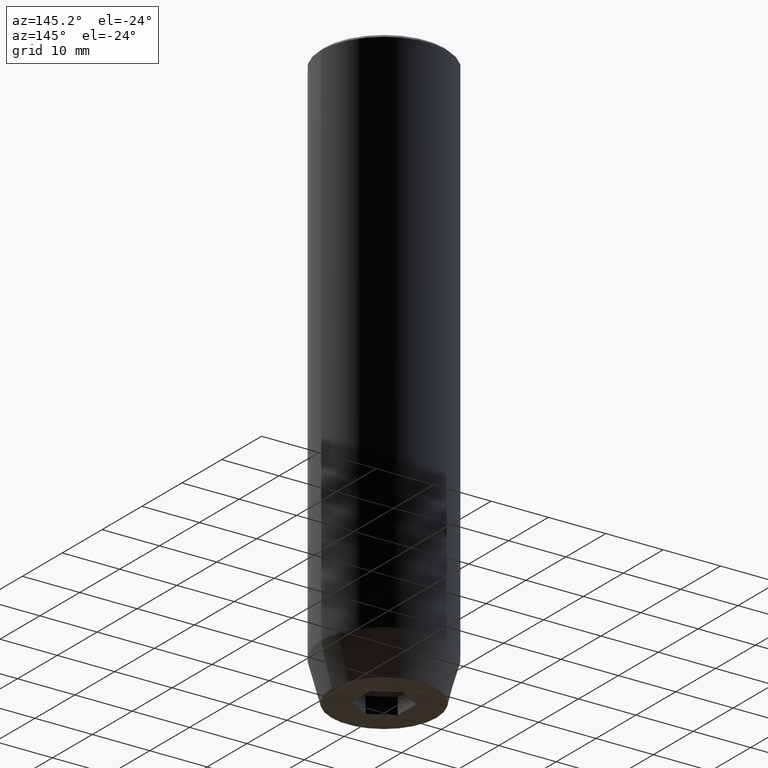
[diagram: clean part render]
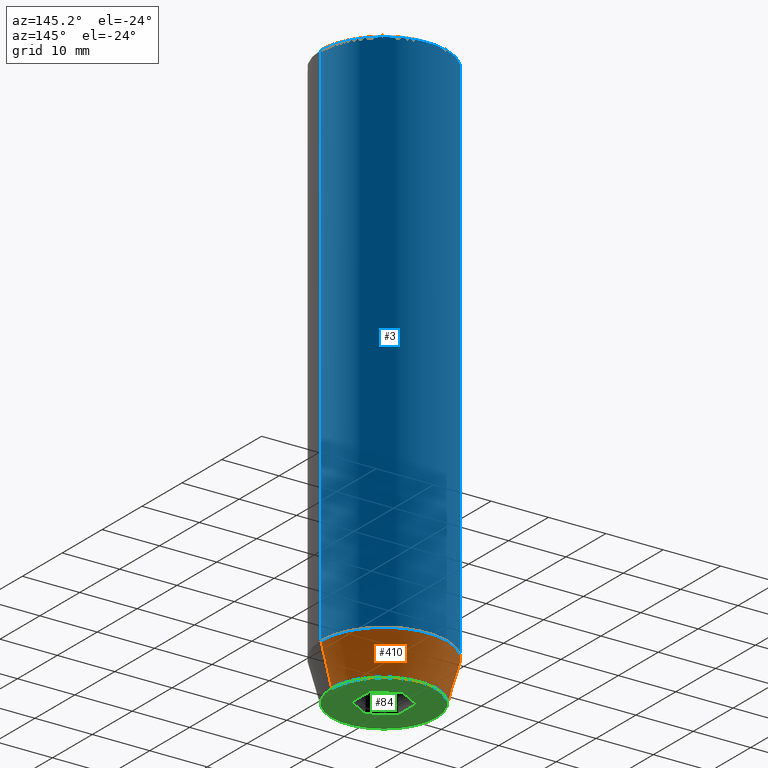
[diagram: same view with three faces highlighted in distinct colors, each labeled with its STEP entity id]
A machine part, auxiliary view with three faces highlighted in distinct colors.
Their STEP definitions:

[orange] entity #410 — the highlighted conical surface has half-angle 15 deg.
#31 = ORIENTED_EDGE ( 'NONE', *, *, #440, .F. ) ;
#40 = DIRECTION ( 'NONE',  ( -0.000000000000000000, -0.000000000000000000, 1.000000000000000000 ) ) ;
#44 = CARTESIAN_POINT ( 'NONE',  ( -9.124355652982133691, 1.232261386766375507E-15, -100.0000000000000000 ) ) ;
#70 = VECTOR ( 'NONE', #381, 1000.000000000000000 ) ;
#85 = AXIS2_PLACEMENT_3D ( 'NONE', #281, #450, #190 ) ;
#88 = CARTESIAN_POINT ( 'NONE',  ( 0.000000000000000000, 0.000000000000000000, -100.0000000000000000 ) ) ;
#102 = DIRECTION ( 'NONE',  ( 0.2588190451025213501, 0.000000000000000000, 0.9659258262890680902 ) ) ;
#106 = VERTEX_POINT ( 'NONE', #366 ) ;
#120 = ORIENTED_EDGE ( 'NONE', *, *, #435, .T. ) ;
#132 = EDGE_CURVE ( 'NONE', #201, #167, #495, .T. ) ;
#144 = DIRECTION ( 'NONE',  ( 1.000000000000000000, 0.000000000000000000, 0.000000000000000000 ) ) ;
#167 = VERTEX_POINT ( 'NONE', #44 ) ;
#190 = DIRECTION ( 'NONE',  ( 1.000000000000000000, 0.000000000000000000, 0.000000000000000000 ) ) ;
#201 = VERTEX_POINT ( 'NONE', #447 ) ;
#242 = LINE ( 'NONE', #417, #70 ) ;
#276 = CIRCLE ( 'NONE', #371, 11.00000000000000000 ) ;
#281 = CARTESIAN_POINT ( 'NONE',  ( 0.000000000000000000, 0.000000000000000000, -93.00000000000000000 ) ) ;
#292 = CARTESIAN_POINT ( 'NONE',  ( 11.00000000000000000, 0.000000000000000000, -93.00000000000000000 ) ) ;
#305 = ORIENTED_EDGE ( 'NONE', *, *, #525, .F. ) ;
#317 = CONICAL_SURFACE ( 'NONE', #85, 11.00000000000000000, 0.2617993877991500740 ) ;
#347 = CARTESIAN_POINT ( 'NONE',  ( 0.000000000000000000, 0.000000000000000000, -93.00000000000000000 ) ) ;
#353 = ORIENTED_EDGE ( 'NONE', *, *, #132, .T. ) ;
#366 = CARTESIAN_POINT ( 'NONE',  ( 11.00000000000000000, 0.000000000000000000, -93.00000000000000000 ) ) ;
#371 = AXIS2_PLACEMENT_3D ( 'NONE', #347, #395, #513 ) ;
#381 = DIRECTION ( 'NONE',  ( -0.2588190451025213501, 3.169619151431772337E-17, 0.9659258262890680902 ) ) ;
#395 = DIRECTION ( 'NONE',  ( -0.000000000000000000, -0.000000000000000000, 1.000000000000000000 ) ) ;
#410 = ADVANCED_FACE ( 'NONE', ( #457 ), #317, .T. ) ;
#417 = CARTESIAN_POINT ( 'NONE',  ( -11.00000000000000000, 1.347111479062088405E-15, -93.00000000000000000 ) ) ;
#429 = VERTEX_POINT ( 'NONE', #503 ) ;
#435 = EDGE_CURVE ( 'NONE', #167, #429, #242, .T. ) ;
#440 = EDGE_CURVE ( 'NONE', #201, #106, #545, .T. ) ;
#447 = CARTESIAN_POINT ( 'NONE',  ( 9.124355652982133691, 0.000000000000000000, -100.0000000000000000 ) ) ;
#450 = DIRECTION ( 'NONE',  ( -0.000000000000000000, -0.000000000000000000, 1.000000000000000000 ) ) ;
#457 = FACE_OUTER_BOUND ( 'NONE', #501, .T. ) ;
#474 = VECTOR ( 'NONE', #102, 1000.000000000000000 ) ;
#495 = CIRCLE ( 'NONE', #572, 9.124355652982133691 ) ;
#501 = EDGE_LOOP ( 'NONE', ( #353, #120, #305, #31 ) ) ;
#503 = CARTESIAN_POINT ( 'NONE',  ( -11.00000000000000000, 1.347111479062088405E-15, -93.00000000000000000 ) ) ;
#513 = DIRECTION ( 'NONE',  ( 1.000000000000000000, 0.000000000000000000, 0.000000000000000000 ) ) ;
#525 = EDGE_CURVE ( 'NONE', #106, #429, #276, .T. ) ;
#545 = LINE ( 'NONE', #292, #474 ) ;
#572 = AXIS2_PLACEMENT_3D ( 'NONE', #88, #40, #144 ) ;

[blue] entity #3 — the highlighted cylindrical surface (partial cylindrical patch) has radius 11 mm, axis along (-0, -0, 1).
#3 = ADVANCED_FACE ( 'NONE', ( #77 ), #571, .T. ) ;
#17 = CARTESIAN_POINT ( 'NONE',  ( -11.00000000000000000, 1.347111479062088405E-15, -0.5000000000000004441 ) ) ;
#30 = DIRECTION ( 'NONE',  ( -0.000000000000000000, -0.000000000000000000, 1.000000000000000000 ) ) ;
#49 = EDGE_CURVE ( 'NONE', #429, #470, #482, .T. ) ;
#77 = FACE_OUTER_BOUND ( 'NONE', #400, .T. ) ;
#106 = VERTEX_POINT ( 'NONE', #366 ) ;
#161 = CARTESIAN_POINT ( 'NONE',  ( 11.00000000000000000, 0.000000000000000000, -0.5000000000000004441 ) ) ;
#163 = LINE ( 'NONE', #345, #508 ) ;
#164 = ORIENTED_EDGE ( 'NONE', *, *, #234, .F. ) ;
#195 = CARTESIAN_POINT ( 'NONE',  ( 0.000000000000000000, 0.000000000000000000, -0.5000000000000004441 ) ) ;
#224 = DIRECTION ( 'NONE',  ( -0.000000000000000000, -0.000000000000000000, 1.000000000000000000 ) ) ;
#229 = DIRECTION ( 'NONE',  ( -0.000000000000000000, -0.000000000000000000, 1.000000000000000000 ) ) ;
#234 = EDGE_CURVE ( 'NONE', #106, #510, #163, .T. ) ;
#236 = DIRECTION ( 'NONE',  ( 0.000000000000000000, 0.000000000000000000, -1.000000000000000000 ) ) ;
#276 = CIRCLE ( 'NONE', #371, 11.00000000000000000 ) ;
#298 = ORIENTED_EDGE ( 'NONE', *, *, #49, .T. ) ;
#310 = AXIS2_PLACEMENT_3D ( 'NONE', #478, #229, #365 ) ;
#330 = AXIS2_PLACEMENT_3D ( 'NONE', #195, #236, #372 ) ;
#343 = ORIENTED_EDGE ( 'NONE', *, *, #525, .T. ) ;
#345 = CARTESIAN_POINT ( 'NONE',  ( 11.00000000000000000, 0.000000000000000000, 0.000000000000000000 ) ) ;
#347 = CARTESIAN_POINT ( 'NONE',  ( 0.000000000000000000, 0.000000000000000000, -93.00000000000000000 ) ) ;
#365 = DIRECTION ( 'NONE',  ( 1.000000000000000000, 0.000000000000000000, 0.000000000000000000 ) ) ;
#366 = CARTESIAN_POINT ( 'NONE',  ( 11.00000000000000000, 0.000000000000000000, -93.00000000000000000 ) ) ;
#371 = AXIS2_PLACEMENT_3D ( 'NONE', #347, #395, #513 ) ;
#372 = DIRECTION ( 'NONE',  ( 1.000000000000000000, 0.000000000000000000, 0.000000000000000000 ) ) ;
#395 = DIRECTION ( 'NONE',  ( -0.000000000000000000, -0.000000000000000000, 1.000000000000000000 ) ) ;
#400 = EDGE_LOOP ( 'NONE', ( #343, #298, #473, #164 ) ) ;
#402 = CIRCLE ( 'NONE', #330, 11.00000000000000000 ) ;
#428 = EDGE_CURVE ( 'NONE', #470, #510, #402, .T. ) ;
#429 = VERTEX_POINT ( 'NONE', #503 ) ;
#470 = VERTEX_POINT ( 'NONE', #17 ) ;
#473 = ORIENTED_EDGE ( 'NONE', *, *, #428, .T. ) ;
#478 = CARTESIAN_POINT ( 'NONE',  ( 0.000000000000000000, 0.000000000000000000, 0.000000000000000000 ) ) ;
#482 = LINE ( 'NONE', #562, #484 ) ;
#484 = VECTOR ( 'NONE', #224, 1000.000000000000000 ) ;
#503 = CARTESIAN_POINT ( 'NONE',  ( -11.00000000000000000, 1.347111479062088405E-15, -93.00000000000000000 ) ) ;
#508 = VECTOR ( 'NONE', #30, 1000.000000000000000 ) ;
#510 = VERTEX_POINT ( 'NONE', #161 ) ;
#513 = DIRECTION ( 'NONE',  ( 1.000000000000000000, 0.000000000000000000, 0.000000000000000000 ) ) ;
#525 = EDGE_CURVE ( 'NONE', #106, #429, #276, .T. ) ;
#562 = CARTESIAN_POINT ( 'NONE',  ( -11.00000000000000000, 1.347111479062088405E-15, 0.000000000000000000 ) ) ;
#571 = CYLINDRICAL_SURFACE ( 'NONE', #310, 11.00000000000000000 ) ;

[green] entity #84 — the highlighted planar face has unit normal (0, 0, -1).
#6 = ORIENTED_EDGE ( 'NONE', *, *, #469, .F. ) ;
#14 = ORIENTED_EDGE ( 'NONE', *, *, #90, .F. ) ;
#15 = DIRECTION ( 'NONE',  ( -0.000000000000000000, -0.000000000000000000, 1.000000000000000000 ) ) ;
#18 = EDGE_LOOP ( 'NONE', ( #514, #24, #14, #113, #155, #6 ) ) ;
#19 = LINE ( 'NONE', #116, #548 ) ;
#23 = EDGE_LOOP ( 'NONE', ( #159, #300 ) ) ;
#24 = ORIENTED_EDGE ( 'NONE', *, *, #114, .F. ) ;
#33 = LINE ( 'NONE', #309, #295 ) ;
#40 = DIRECTION ( 'NONE',  ( -0.000000000000000000, -0.000000000000000000, 1.000000000000000000 ) ) ;
#44 = CARTESIAN_POINT ( 'NONE',  ( -9.124355652982133691, 1.232261386766375507E-15, -100.0000000000000000 ) ) ;
#48 = LINE ( 'NONE', #193, #264 ) ;
#67 = CARTESIAN_POINT ( 'NONE',  ( 0.000000000000000000, 0.000000000000000000, -100.0000000000000000 ) ) ;
#82 = LINE ( 'NONE', #287, #189 ) ;
#84 = ADVANCED_FACE ( 'NONE', ( #170, #174 ), #308, .T. ) ;
#88 = CARTESIAN_POINT ( 'NONE',  ( 0.000000000000000000, 0.000000000000000000, -100.0000000000000000 ) ) ;
#90 = EDGE_CURVE ( 'NONE', #214, #215, #33, .T. ) ;
#94 = EDGE_CURVE ( 'NONE', #420, #112, #370, .T. ) ;
#99 = CIRCLE ( 'NONE', #584, 9.124355652982133691 ) ;
#101 = CARTESIAN_POINT ( 'NONE',  ( 4.000000000000000000, -2.309401076758502480, -100.0000000000000000 ) ) ;
#107 = VECTOR ( 'NONE', #134, 1000.000000000000000 ) ;
#112 = VERTEX_POINT ( 'NONE', #101 ) ;
#113 = ORIENTED_EDGE ( 'NONE', *, *, #121, .F. ) ;
#114 = EDGE_CURVE ( 'NONE', #215, #349, #48, .T. ) ;
#116 = CARTESIAN_POINT ( 'NONE',  ( 2.000000000000000444, 3.464101615137754386, -100.0000000000000000 ) ) ;
#121 = EDGE_CURVE ( 'NONE', #112, #214, #487, .T. ) ;
#124 = EDGE_CURVE ( 'NONE', #349, #203, #82, .T. ) ;
#126 = DIRECTION ( 'NONE',  ( -1.000000000000000000, 0.000000000000000000, -0.000000000000000000 ) ) ;
#132 = EDGE_CURVE ( 'NONE', #201, #167, #495, .T. ) ;
#134 = DIRECTION ( 'NONE',  ( 0.000000000000000000, -1.000000000000000000, 0.000000000000000000 ) ) ;
#135 = VECTOR ( 'NONE', #578, 1000.000000000000114 ) ;
#144 = DIRECTION ( 'NONE',  ( 1.000000000000000000, 0.000000000000000000, 0.000000000000000000 ) ) ;
#155 = ORIENTED_EDGE ( 'NONE', *, *, #94, .F. ) ;
#156 = DIRECTION ( 'NONE',  ( 0.8660254037844385966, -0.5000000000000001110, 0.000000000000000000 ) ) ;
#159 = ORIENTED_EDGE ( 'NONE', *, *, #132, .F. ) ;
#165 = DIRECTION ( 'NONE',  ( 1.000000000000000000, 0.000000000000000000, 0.000000000000000000 ) ) ;
#167 = VERTEX_POINT ( 'NONE', #44 ) ;
#170 = FACE_BOUND ( 'NONE', #18, .T. ) ;
#174 = FACE_OUTER_BOUND ( 'NONE', #23, .T. ) ;
#189 = VECTOR ( 'NONE', #378, 999.9999999999998863 ) ;
#193 = CARTESIAN_POINT ( 'NONE',  ( -4.000000000000000000, 0.000000000000000000, -100.0000000000000000 ) ) ;
#201 = VERTEX_POINT ( 'NONE', #447 ) ;
#203 = VERTEX_POINT ( 'NONE', #208 ) ;
#208 = CARTESIAN_POINT ( 'NONE',  ( 2.168404344971008868E-16, 4.618802153517006737, -100.0000000000000000 ) ) ;
#214 = VERTEX_POINT ( 'NONE', #333 ) ;
#215 = VERTEX_POINT ( 'NONE', #499 ) ;
#240 = CARTESIAN_POINT ( 'NONE',  ( 2.000000000000000888, -3.464101615137754386, -100.0000000000000000 ) ) ;
#264 = VECTOR ( 'NONE', #280, 1000.000000000000000 ) ;
#280 = DIRECTION ( 'NONE',  ( 0.000000000000000000, 1.000000000000000000, 0.000000000000000000 ) ) ;
#287 = CARTESIAN_POINT ( 'NONE',  ( -2.000000000000000000, 3.464101615137754830, -100.0000000000000000 ) ) ;
#295 = VECTOR ( 'NONE', #479, 1000.000000000000114 ) ;
#300 = ORIENTED_EDGE ( 'NONE', *, *, #587, .F. ) ;
#308 = PLANE ( 'NONE',  #455 ) ;
#309 = CARTESIAN_POINT ( 'NONE',  ( -2.000000000000000888, -3.464101615137754386, -100.0000000000000000 ) ) ;
#333 = CARTESIAN_POINT ( 'NONE',  ( 4.336808689942017736E-16, -4.618802153517006737, -100.0000000000000000 ) ) ;
#349 = VERTEX_POINT ( 'NONE', #376 ) ;
#370 = LINE ( 'NONE', #538, #107 ) ;
#376 = CARTESIAN_POINT ( 'NONE',  ( -4.000000000000000000, 2.309401076758503368, -100.0000000000000000 ) ) ;
#378 = DIRECTION ( 'NONE',  ( 0.8660254037844387076, 0.5000000000000001110, 0.000000000000000000 ) ) ;
#404 = CARTESIAN_POINT ( 'NONE',  ( 0.000000000000000000, 9.124355652982133691, -100.0000000000000000 ) ) ;
#420 = VERTEX_POINT ( 'NONE', #497 ) ;
#447 = CARTESIAN_POINT ( 'NONE',  ( 9.124355652982133691, 0.000000000000000000, -100.0000000000000000 ) ) ;
#455 = AXIS2_PLACEMENT_3D ( 'NONE', #404, #567, #126 ) ;
#469 = EDGE_CURVE ( 'NONE', #203, #420, #19, .T. ) ;
#479 = DIRECTION ( 'NONE',  ( -0.8660254037844384856, 0.5000000000000002220, 0.000000000000000000 ) ) ;
#487 = LINE ( 'NONE', #240, #135 ) ;
#495 = CIRCLE ( 'NONE', #572, 9.124355652982133691 ) ;
#497 = CARTESIAN_POINT ( 'NONE',  ( 4.000000000000000000, 2.309401076758503368, -100.0000000000000000 ) ) ;
#499 = CARTESIAN_POINT ( 'NONE',  ( -4.000000000000000000, -2.309401076758503368, -100.0000000000000000 ) ) ;
#514 = ORIENTED_EDGE ( 'NONE', *, *, #124, .F. ) ;
#538 = CARTESIAN_POINT ( 'NONE',  ( 4.000000000000000000, 0.000000000000000000, -100.0000000000000000 ) ) ;
#548 = VECTOR ( 'NONE', #156, 1000.000000000000000 ) ;
#567 = DIRECTION ( 'NONE',  ( 0.000000000000000000, 0.000000000000000000, -1.000000000000000000 ) ) ;
#572 = AXIS2_PLACEMENT_3D ( 'NONE', #88, #40, #144 ) ;
#578 = DIRECTION ( 'NONE',  ( -0.8660254037844384856, -0.5000000000000002220, 0.000000000000000000 ) ) ;
#584 = AXIS2_PLACEMENT_3D ( 'NONE', #67, #15, #165 ) ;
#587 = EDGE_CURVE ( 'NONE', #167, #201, #99, .T. ) ;